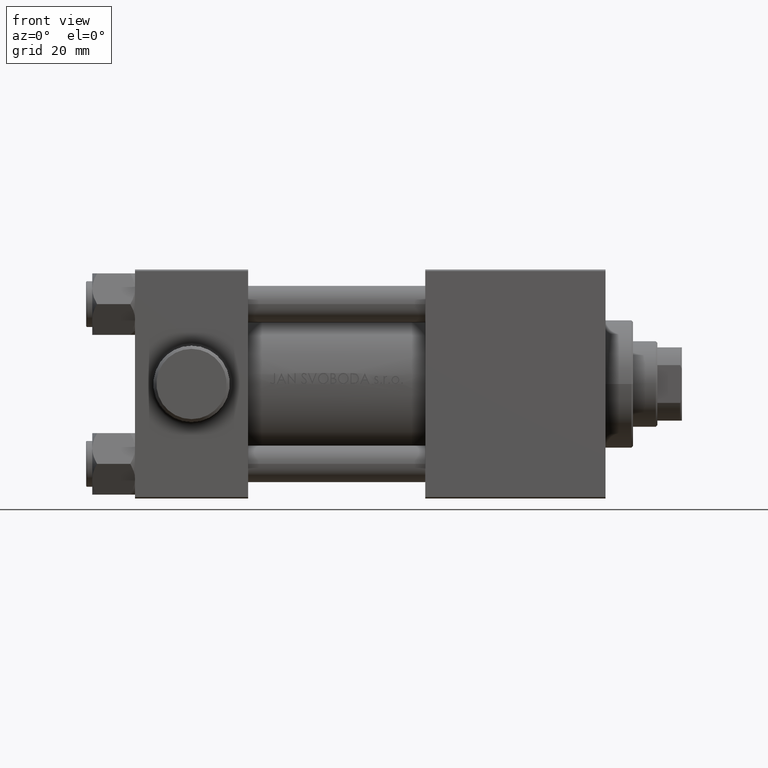
[diagram: clean part render]
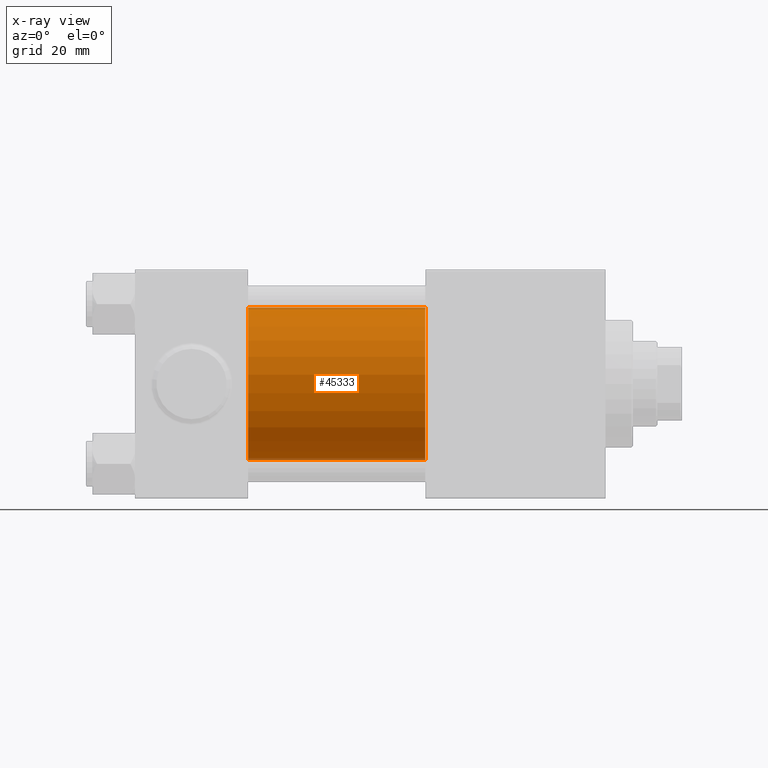
[diagram: x-ray — body ghosted, one internal face saturated and labeled with its STEP entity id]
A machine part, front view, then the same camera in x-ray: the body is ghosted and one INTERNAL B-rep face — a face not visible from any outside direction — is saturated and labeled: STEP entity #45333.
In plain terms, the highlighted cylindrical surface (partial cylindrical patch) has radius 25 mm, axis along (-1, -0, -0).
Its self-contained STEP definition (entity closure, byte-faithful):
#819 = AXIS2_PLACEMENT_3D ( 'NONE', #33030, #26008, #30203 ) ;
#1528 = EDGE_CURVE ( 'NONE', #43553, #41418, #3769, .T. ) ;
#3187 = CARTESIAN_POINT ( 'NONE',  ( 95.00000000000000000, -3.469446951953614189E-15, 25.00000000000000000 ) ) ;
#3459 = EDGE_LOOP ( 'NONE', ( #41033, #21656, #22558, #21311 ) ) ;
#3769 = LINE ( 'NONE', #22479, #44318 ) ;
#4436 = FACE_OUTER_BOUND ( 'NONE', #3459, .T. ) ;
#9285 = CARTESIAN_POINT ( 'NONE',  ( 95.00000000000000000, -3.469446951953614189E-15, 0.000000000000000000 ) ) ;
#9597 = VECTOR ( 'NONE', #17955, 1000.000000000000000 ) ;
#10454 = LINE ( 'NONE', #3187, #9597 ) ;
#11035 = DIRECTION ( 'NONE',  ( -1.000000000000000000, -0.000000000000000000, -0.000000000000000000 ) ) ;
#14183 = CIRCLE ( 'NONE', #26805, 25.00000000000000000 ) ;
#14283 = CIRCLE ( 'NONE', #819, 25.00000000000000000 ) ;
#15517 = VERTEX_POINT ( 'NONE', #29368 ) ;
#16565 = DIRECTION ( 'NONE',  ( 1.000000000000000000, 0.000000000000000000, 0.000000000000000000 ) ) ;
#17955 = DIRECTION ( 'NONE',  ( -1.000000000000000000, -0.000000000000000000, -0.000000000000000000 ) ) ;
#18791 = CARTESIAN_POINT ( 'NONE',  ( 95.00000000000000000, -3.469446951953614189E-15, 25.00000000000000000 ) ) ;
#21311 = ORIENTED_EDGE ( 'NONE', *, *, #26168, .F. ) ;
#21656 = ORIENTED_EDGE ( 'NONE', *, *, #1528, .T. ) ;
#22457 = CYLINDRICAL_SURFACE ( 'NONE', #30180, 25.00000000000000000 ) ;
#22479 = CARTESIAN_POINT ( 'NONE',  ( 95.00000000000000000, -4.078299540852317872E-16, -25.00000000000000000 ) ) ;
#22558 = ORIENTED_EDGE ( 'NONE', *, *, #32187, .F. ) ;
#26008 = DIRECTION ( 'NONE',  ( 1.000000000000000000, 0.000000000000000000, 0.000000000000000000 ) ) ;
#26168 = EDGE_CURVE ( 'NONE', #46156, #15517, #10454, .T. ) ;
#26182 = CARTESIAN_POINT ( 'NONE',  ( 95.00000000000000000, -3.469446951953614189E-15, 0.000000000000000000 ) ) ;
#26805 = AXIS2_PLACEMENT_3D ( 'NONE', #9285, #16565, #37825 ) ;
#28496 = EDGE_CURVE ( 'NONE', #46156, #43553, #14183, .T. ) ;
#29368 = CARTESIAN_POINT ( 'NONE',  ( 37.00000000000000000, -3.469446951953614189E-15, 25.00000000000000000 ) ) ;
#29699 = DIRECTION ( 'NONE',  ( -1.000000000000000000, -0.000000000000000000, -0.000000000000000000 ) ) ;
#30180 = AXIS2_PLACEMENT_3D ( 'NONE', #26182, #29699, #39765 ) ;
#30203 = DIRECTION ( 'NONE',  ( 0.000000000000000000, 0.000000000000000000, -1.000000000000000000 ) ) ;
#31362 = CARTESIAN_POINT ( 'NONE',  ( 37.00000000000000000, -4.078299540852317872E-16, -25.00000000000000000 ) ) ;
#32015 = CARTESIAN_POINT ( 'NONE',  ( 95.00000000000000000, -4.078299540852317872E-16, -25.00000000000000000 ) ) ;
#32187 = EDGE_CURVE ( 'NONE', #15517, #41418, #14283, .T. ) ;
#33030 = CARTESIAN_POINT ( 'NONE',  ( 37.00000000000000000, -3.469446951953614189E-15, 0.000000000000000000 ) ) ;
#37825 = DIRECTION ( 'NONE',  ( 0.000000000000000000, 0.000000000000000000, -1.000000000000000000 ) ) ;
#39765 = DIRECTION ( 'NONE',  ( 0.000000000000000000, 0.000000000000000000, 1.000000000000000000 ) ) ;
#41033 = ORIENTED_EDGE ( 'NONE', *, *, #28496, .T. ) ;
#41418 = VERTEX_POINT ( 'NONE', #31362 ) ;
#43553 = VERTEX_POINT ( 'NONE', #32015 ) ;
#44318 = VECTOR ( 'NONE', #11035, 1000.000000000000000 ) ;
#45333 = ADVANCED_FACE ( 'NONE', ( #4436 ), #22457, .F. ) ;
#46156 = VERTEX_POINT ( 'NONE', #18791 ) ;